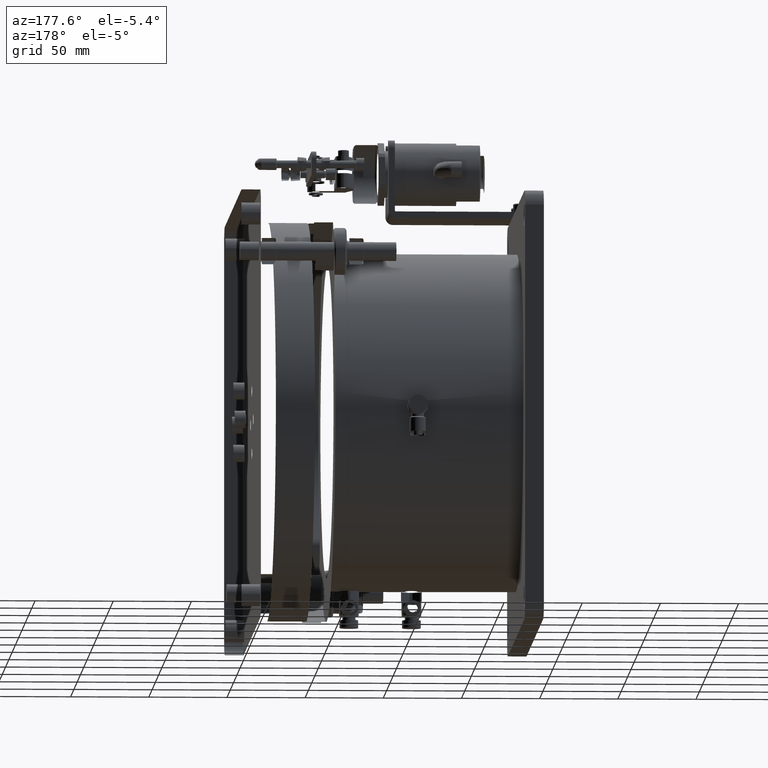
[diagram: clean part render]
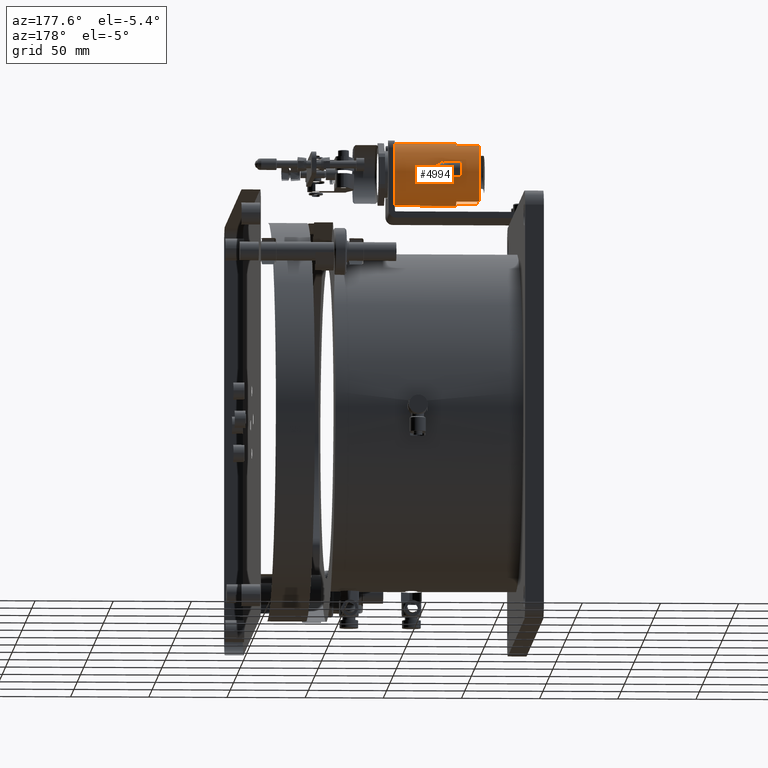
[diagram: same view with one face highlighted and labeled with its STEP entity id]
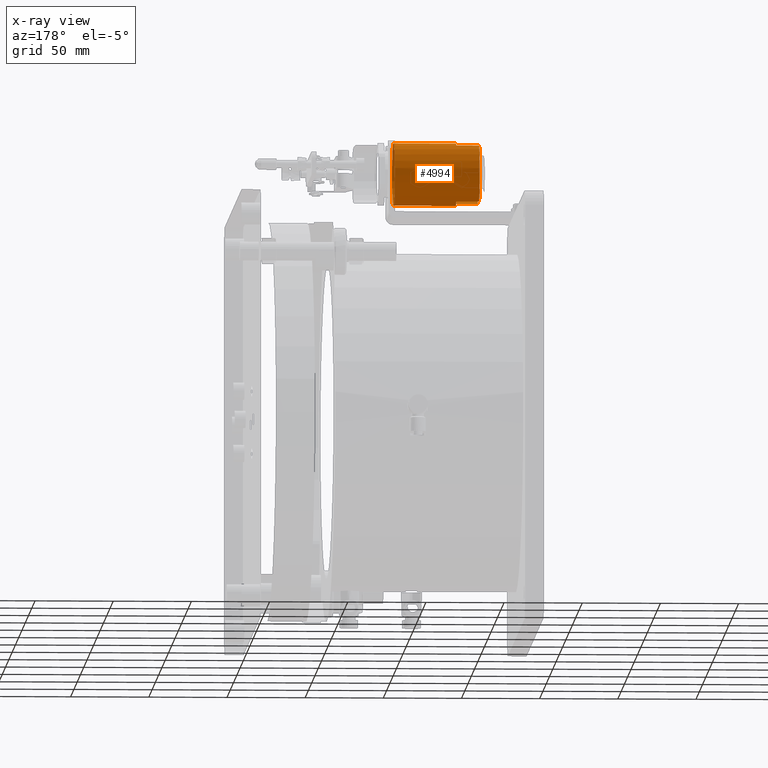
[diagram: x-ray of the same camera — body ghosted, the highlighted face saturated]
A machine part, auxiliary view. The second image highlights one B-rep face of the part: STEP entity #4994.
The next image is the same camera in x-ray: the body ghosted, the highlighted face saturated — about 2% of this face is hidden behind the body in this view.
In plain terms, the highlighted cylindrical surface (bore or boss wall) has radius 20 mm, axis along (1, 0, -0).
Its self-contained STEP definition (entity closure, byte-faithful):
#35 = CARTESIAN_POINT ( 'NONE',  ( 622.2478127839387980, -76.37611936378308997, 590.0969418321795956 ) ) ;
#187 = ORIENTED_EDGE ( 'NONE', *, *, #7001, .T. ) ;
#205 = CARTESIAN_POINT ( 'NONE',  ( 628.1511095749585820, -76.09423769593017539, 594.6112970941693447 ) ) ;
#273 = CARTESIAN_POINT ( 'NONE',  ( 636.7813149775768125, -115.6689274850426443, 589.5682206694500564 ) ) ;
#693 = VERTEX_POINT ( 'NONE', #20071 ) ;
#817 = CARTESIAN_POINT ( 'NONE',  ( 599.7532529064189930, -96.07306532472159688, 593.5684939441118786 ) ) ;
#1124 = CARTESIAN_POINT ( 'NONE',  ( 614.2532529064191067, -96.07306532472159688, 593.5684939441118786 ) ) ;
#1230 = EDGE_CURVE ( 'NONE', #13747, #24744, #10198, .T. ) ;
#1374 = CARTESIAN_POINT ( 'NONE',  ( 607.4765307754321384, -115.7478424309291256, 597.1620801990541167 ) ) ;
#1491 = CARTESIAN_POINT ( 'NONE',  ( 626.2767619447254219, -76.37895571019646468, 590.0778431257248258 ) ) ;
#1512 = CARTESIAN_POINT ( 'NONE',  ( 605.2532529064189930, -116.0730653247215969, 593.5684939441117649 ) ) ;
#1525 = CARTESIAN_POINT ( 'NONE',  ( 628.2532529064189930, -76.07306532472159688, 593.5684939441117649 ) ) ;
#1610 = CARTESIAN_POINT ( 'NONE',  ( 628.2532529064189930, -76.07306532472161109, 593.0380856154096136 ) ) ;
#1714 = CARTESIAN_POINT ( 'NONE',  ( 637.2953021423251130, -115.6905234140247103, 589.6699432105601772 ) ) ;
#1891 = VERTEX_POINT ( 'NONE', #11869 ) ;
#2001 = CARTESIAN_POINT ( 'NONE',  ( 620.2532529064188793, -76.07306532472159688, 593.3023526689413529 ) ) ;
#2011 = ORIENTED_EDGE ( 'NONE', *, *, #10291, .T. ) ;
#2063 = CARTESIAN_POINT ( 'NONE',  ( 606.7965073346900908, -115.8189209795332317, 590.3678483654047113 ) ) ;
#2131 = ORIENTED_EDGE ( 'NONE', *, *, #20604, .T. ) ;
#2158 = CARTESIAN_POINT ( 'NONE',  ( 627.7451594833781883, -76.16945821308466691, 595.5902297765893536 ) ) ;
#2180 = VERTEX_POINT ( 'NONE', #2793 ) ;
#2193 = CARTESIAN_POINT ( 'NONE',  ( 605.7613613360284717, -115.9766697412974850, 591.5465264960148488 ) ) ;
#2453 = CARTESIAN_POINT ( 'NONE',  ( 608.2136231836186653, -115.6947259603525282, 589.6963952182494495 ) ) ;
#2487 = VERTEX_POINT ( 'NONE', #8286 ) ;
#2533 = DIRECTION ( 'NONE',  ( -5.551115123125777969E-15, 0.000000000000000000, -1.000000000000000000 ) ) ;
#2793 = CARTESIAN_POINT ( 'NONE',  ( 613.2532529064189930, -116.0730653247215969, 593.5684939441117649 ) ) ;
#3098 = CIRCLE ( 'NONE', #22384, 20.00000000000001776 ) ;
#3121 = FACE_OUTER_BOUND ( 'NONE', #14416, .T. ) ;
#3196 = ORIENTED_EDGE ( 'NONE', *, *, #8689, .T. ) ;
#3262 = CARTESIAN_POINT ( 'NONE',  ( 639.4554377231090712, -115.9254357003088955, 596.0233462646407361 ) ) ;
#3388 = CARTESIAN_POINT ( 'NONE',  ( 613.2532529064188793, -116.0730653247215685, 593.0374951000483179 ) ) ;
#3643 = B_SPLINE_CURVE_WITH_KNOTS ( 'NONE', 3,
 ( #5158, #2001, #3711, #17649, #7529, #11998, #3838, #19491, #7925, #35, #21831, #9634, #25634, #18038, #25771, #19622, #3974, #1491, #9768, #15553, #7797, #15947, #1610, #15823 ),
 .UNSPECIFIED., .F., .F.,
 ( 4, 2, 2, 2, 2, 2, 2, 2, 2, 2, 2, 4 ),
 ( 0.000000000000000000, 0.06250000000000095757, 0.1250000000000019151, 0.2499999999999795164, 0.3124999999999772959, 0.3749999999999750755, 0.4999999999999946709, 0.5625000000000044409, 0.6250000000000142109, 0.7500000000000094369, 0.8750000000000047740, 1.000000000000000000 ),
 .UNSPECIFIED. ) ;
#3691 = CARTESIAN_POINT ( 'NONE',  ( 633.0490044612904512, -115.9257810236708366, 591.1164280724524360 ) ) ;
#3711 = CARTESIAN_POINT ( 'NONE',  ( 620.2788397734296950, -76.07837649127429813, 593.0410843236217033 ) ) ;
#3838 = CARTESIAN_POINT ( 'NONE',  ( 621.0512893225602511, -76.22074562938166764, 591.1131295153264773 ) ) ;
#3876 = CARTESIAN_POINT ( 'NONE',  ( 622.2321875135744449, -76.37920419269708816, 597.0605221697562683 ) ) ;
#3949 = CARTESIAN_POINT ( 'NONE',  ( 635.2136231841135441, -115.6947259603449822, 589.6963952182110233 ) ) ;
#3974 = CARTESIAN_POINT ( 'NONE',  ( 625.5449282926399519, -76.43612804595602483, 589.7735837381867441 ) ) ;
#4011 = AXIS2_PLACEMENT_3D ( 'NONE', #17622, #15401, #17500 ) ;
#4200 = CARTESIAN_POINT ( 'NONE',  ( 633.7965073361363011, -115.8189209793265633, 590.3678483639564547 ) ) ;
#4425 = CARTESIAN_POINT ( 'NONE',  ( 611.3692977052805873, -115.7824553588552732, 590.1706577413839341 ) ) ;
#4568 = CARTESIAN_POINT ( 'NONE',  ( 633.6138217027921655, -115.8450664538906096, 596.5857597956626250 ) ) ;
#4698 = CARTESIAN_POINT ( 'NONE',  ( 633.8157128566649590, -115.8186814957664268, 596.7515791801680507 ) ) ;
#4764 = CARTESIAN_POINT ( 'NONE',  ( 614.2532529064191067, -104.7908632118029431, 611.5684939441119923 ) ) ;
#4994 = ADVANCED_FACE ( 'NONE', ( #20596, #19767, #3121, #10999, #9034 ), #13746, .T. ) ;
#5073 = DIRECTION ( 'NONE',  ( 1.000000000000000000, 4.870765033165564874E-18, -3.582884835280661200E-15 ) ) ;
#5084 = CARTESIAN_POINT ( 'NONE',  ( 635.2130881293932134, -115.6904615507582577, 597.4672925684677693 ) ) ;
#5158 = CARTESIAN_POINT ( 'NONE',  ( 620.2532529064189930, -76.07306532472159688, 593.5684939441117649 ) ) ;
#5195 = DIRECTION ( 'NONE',  ( -5.551115123125777969E-15, 0.000000000000000000, -1.000000000000000000 ) ) ;
#5220 = CARTESIAN_POINT ( 'NONE',  ( 640.1512968414664329, -116.0519176866114464, 594.6115565676003598 ) ) ;
#5264 = CARTESIAN_POINT ( 'NONE',  ( 614.2532529064189930, -104.7908632118029146, 575.5684939441118786 ) ) ;
#5421 = B_SPLINE_CURVE_WITH_KNOTS ( 'NONE', 3,
 ( #12290, #24114, #205, #2158, #9945, #5856, #8226, #9808, #16364, #16252, #12035, #25813, #24232, #22385, #6252, #3876, #11903, #20310, #13883, #14400, #7836, #7962 ),
 .UNSPECIFIED., .F., .F.,
 ( 4, 2, 2, 2, 2, 2, 2, 2, 2, 2, 4 ),
 ( 0.000000000000000000, 0.1249999999999870937, 0.2499999999999741873, 0.3124999999999770739, 0.3749999999999799050, 0.4999999999999754641, 0.5624999999999732436, 0.6249999999999710232, 0.7499999999999805711, 0.8749999999999902300, 1.000000000000000000 ),
 .UNSPECIFIED. ) ;
#5575 = CARTESIAN_POINT ( 'NONE',  ( 613.1512968414660918, -116.0519176865672932, 594.6115565681743647 ) ) ;
#5856 = CARTESIAN_POINT ( 'NONE',  ( 626.8940436213880503, -76.30088348878716431, 596.5845932944150718 ) ) ;
#6012 = VERTEX_POINT ( 'NONE', #16048 ) ;
#6136 = DIRECTION ( 'NONE',  ( -1.000000000000000000, -4.870765033165564874E-18, 3.582884835280661200E-15 ) ) ;
#6164 = CARTESIAN_POINT ( 'NONE',  ( 611.2579466360147080, -115.7708005113661329, 590.1039429638368574 ) ) ;
#6197 = CARTESIAN_POINT ( 'NONE',  ( 638.8943437768473359, -115.8452909838356959, 590.5527083026727269 ) ) ;
#6252 = CARTESIAN_POINT ( 'NONE',  ( 622.9638663622685044, -76.43627786682850456, 597.3641737498348903 ) ) ;
#6283 = CARTESIAN_POINT ( 'NONE',  ( 609.7813149782364235, -115.6689274850321709, 589.5682206693990111 ) ) ;
#6301 = CIRCLE ( 'NONE', #20956, 20.00000000000001776 ) ;
#6775 = EDGE_LOOP ( 'NONE', ( #2011, #16436 ) ) ;
#7001 = EDGE_CURVE ( 'NONE', #2180, #1891, #19187, .T. ) ;
#7065 = CARTESIAN_POINT ( 'NONE',  ( 599.7532529064189930, -87.35526743764025071, 575.5684939441118786 ) ) ;
#7188 = CARTESIAN_POINT ( 'NONE',  ( 676.7532529064189930, -96.07306532472159688, 593.5684939441116512 ) ) ;
#7197 = CARTESIAN_POINT ( 'NONE',  ( 634.4765307750792545, -115.7478424309242371, 597.1620801990798100 ) ) ;
#7492 = CARTESIAN_POINT ( 'NONE',  ( 599.7532529064191067, -104.7908632118028862, 611.5684939441119923 ) ) ;
#7529 = CARTESIAN_POINT ( 'NONE',  ( 620.4586405348509288, -76.11337770531372371, 592.2758637796107450 ) ) ;
#7542 = LINE ( 'NONE', #15568, #22015 ) ;
#7550 = CARTESIAN_POINT ( 'NONE',  ( 609.7793389997680151, -115.6742270509653281, 597.5430566639455492 ) ) ;
#7685 = CARTESIAN_POINT ( 'NONE',  ( 613.2532529064189930, -116.0730653247215969, 593.5684939441117649 ) ) ;
#7797 = CARTESIAN_POINT ( 'NONE',  ( 627.7450433598670543, -76.16947903009820209, 591.5463376986350568 ) ) ;
#7836 = CARTESIAN_POINT ( 'NONE',  ( 620.2532529064187656, -76.07306532472155425, 594.0997822895814124 ) ) ;
#7925 = CARTESIAN_POINT ( 'NONE',  ( 621.8160999203902293, -76.32749490741298359, 590.3851304478862403 ) ) ;
#7950 = ORIENTED_EDGE ( 'NONE', *, *, #9831, .T. ) ;
#7962 = CARTESIAN_POINT ( 'NONE',  ( 620.2532529064189930, -76.07306532472159688, 593.5684939441117649 ) ) ;
#8226 = CARTESIAN_POINT ( 'NONE',  ( 626.6920266002209701, -76.32729915763067652, 596.7506582241001070 ) ) ;
#8286 = CARTESIAN_POINT ( 'NONE',  ( 654.2532529064188793, -96.07306532472159688, 573.5684939441117649 ) ) ;
#8288 = CARTESIAN_POINT ( 'NONE',  ( 639.7446545131164157, -115.9765837488741624, 591.5459911306644472 ) ) ;
#8369 = LINE ( 'NONE', #20338, #10546 ) ;
#8528 = CARTESIAN_POINT ( 'NONE',  ( 633.0504792787572796, -115.9255120328728879, 596.0228873891801413 ) ) ;
#8611 = CARTESIAN_POINT ( 'NONE',  ( 620.2532529064189930, -76.07306532472159688, 593.5684939441117649 ) ) ;
#8631 = CIRCLE ( 'NONE', #4011, 20.00000000000001776 ) ;
#8647 = DIRECTION ( 'NONE',  ( -5.551115123125777969E-15, 0.000000000000000000, -1.000000000000000000 ) ) ;
#8689 = EDGE_CURVE ( 'NONE', #17799, #15413, #7542, .T. ) ;
#8797 = CARTESIAN_POINT ( 'NONE',  ( 632.2532529064188793, -116.0730653247215969, 593.0381406367860109 ) ) ;
#8799 = AXIS2_PLACEMENT_3D ( 'NONE', #12562, #20565, #19511 ) ;
#9034 = FACE_OUTER_BOUND ( 'NONE', #20298, .T. ) ;
#9258 = CARTESIAN_POINT ( 'NONE',  ( 606.8157128561825857, -115.8186814958404369, 596.7515791797094380 ) ) ;
#9395 = CARTESIAN_POINT ( 'NONE',  ( 606.6138217024704318, -115.8450664539345070, 596.5857597953558979 ) ) ;
#9532 = CARTESIAN_POINT ( 'NONE',  ( 605.3554518845588746, -116.0518795030901487, 594.6117198279148397 ) ) ;
#9634 = CARTESIAN_POINT ( 'NONE',  ( 623.2132478589671791, -76.45568797784189030, 589.6695887384755679 ) ) ;
#9640 = CARTESIAN_POINT ( 'NONE',  ( 599.7532529064191067, -87.35526743764025071, 611.5684939441119923 ) ) ;
#9768 = CARTESIAN_POINT ( 'NONE',  ( 626.7093327461085437, -76.32729601421020504, 590.3673080437533827 ) ) ;
#9808 = CARTESIAN_POINT ( 'NONE',  ( 626.2597025832856161, -76.37602089971028363, 597.0395012834005684 ) ) ;
#9831 = EDGE_CURVE ( 'NONE', #2487, #2487, #8631, .T. ) ;
#9855 = EDGE_LOOP ( 'NONE', ( #17540, #25784 ) ) ;
#9868 = AXIS2_PLACEMENT_3D ( 'NONE', #7188, #10870, #17673 ) ;
#9945 = CARTESIAN_POINT ( 'NONE',  ( 627.4576597229885238, -76.22035839104729860, 596.0208696865826141 ) ) ;
#9978 = CARTESIAN_POINT ( 'NONE',  ( 610.9110239532519699, -115.7385972416346931, 589.9257526128338895 ) ) ;
#10198 = LINE ( 'NONE', #24118, #11420 ) ;
#10263 = CARTESIAN_POINT ( 'NONE',  ( 638.3692977019693444, -115.7824553585204228, 590.1706577394412534 ) ) ;
#10291 = EDGE_CURVE ( 'NONE', #12009, #23234, #3643, .T. ) ;
#10356 = CARTESIAN_POINT ( 'NONE',  ( 608.7248396280514271, -115.6742852710442406, 589.5942152348894751 ) ) ;
#10477 = CARTESIAN_POINT ( 'NONE',  ( 611.8943437790549069, -115.8452909840215312, 590.5527083039736453 ) ) ;
#10500 = CARTESIAN_POINT ( 'NONE',  ( 632.7619302458770107, -115.9765673878716967, 595.5913488178069883 ) ) ;
#10511 = VERTEX_POINT ( 'NONE', #5264 ) ;
#10546 = VECTOR ( 'NONE', #18103, 1000.000000000000000 ) ;
#10751 = ORIENTED_EDGE ( 'NONE', *, *, #1230, .T. ) ;
#10791 = B_SPLINE_CURVE_WITH_KNOTS ( 'NONE', 3,
 ( #17897, #25884, #24178, #8288, #13960, #6197, #20249, #10263, #15803, #18274, #12105, #1714, #273, #21948, #14218, #3949, #22199, #21692, #4200, #3691, #11704, #25747, #8797, #16701 ),
 .UNSPECIFIED., .F., .F.,
 ( 4, 2, 2, 2, 2, 2, 2, 2, 2, 2, 2, 4 ),
 ( 0.000000000000000000, 0.1249999999999499289, 0.2499999999998998579, 0.3124999999998839817, 0.3437499999998761546, 0.3749999999998683831, 0.4999999999998947509, 0.5624999999999078515, 0.6249999999999210631, 0.7499999999999473754, 0.8749999999999736877, 1.000000000000000000 ),
 .UNSPECIFIED. ) ;
#10870 = DIRECTION ( 'NONE',  ( 1.000000000000000000, 4.870765033165564874E-18, -3.582884835280661200E-15 ) ) ;
#10879 = CARTESIAN_POINT ( 'NONE',  ( 636.5191850700250598, -115.6689886221571726, 597.5684677092423271 ) ) ;
#10999 = FACE_BOUND ( 'NONE', #6775, .T. ) ;
#11009 = CARTESIAN_POINT ( 'NONE',  ( 636.7793389996747919, -115.6742270509574979, 597.5430566639838617 ) ) ;
#11360 = CARTESIAN_POINT ( 'NONE',  ( 613.2532529064188793, -116.0730653247216253, 594.0997524707102002 ) ) ;
#11410 = CARTESIAN_POINT ( 'NONE',  ( 613.1506149553355272, -116.0517964404074007, 592.5240484955138527 ) ) ;
#11420 = VECTOR ( 'NONE', #6136, 1000.000000000000000 ) ;
#11493 = CARTESIAN_POINT ( 'NONE',  ( 605.7619302464756856, -115.9765673878276004, 595.5913488183803111 ) ) ;
#11704 = CARTESIAN_POINT ( 'NONE',  ( 632.7613613360282443, -115.9766697411411798, 591.5465264939792860 ) ) ;
#11869 = CARTESIAN_POINT ( 'NONE',  ( 605.2532529064189930, -116.0730653247215969, 593.5684939441117649 ) ) ;
#11903 = CARTESIAN_POINT ( 'NONE',  ( 621.7999566161815892, -76.32765111071017827, 596.7718546237701958 ) ) ;
#11998 = CARTESIAN_POINT ( 'NONE',  ( 620.7636048619337998, -76.16985768512677168, 591.5430517501043823 ) ) ;
#12009 = VERTEX_POINT ( 'NONE', #8611 ) ;
#12035 = CARTESIAN_POINT ( 'NONE',  ( 624.7815947423546277, -76.47717485323718734, 597.5686285229153327 ) ) ;
#12071 = CARTESIAN_POINT ( 'NONE',  ( 607.2291467647904710, -115.7672372942158887, 590.0781900343405368 ) ) ;
#12105 = CARTESIAN_POINT ( 'NONE',  ( 637.9110239536754534, -115.7385972416322488, 589.9257526128207019 ) ) ;
#12290 = CARTESIAN_POINT ( 'NONE',  ( 628.2532529064189930, -76.07306532472159688, 593.5684939441117649 ) ) ;
#12326 = CARTESIAN_POINT ( 'NONE',  ( 612.4567526194625771, -115.9256407819798369, 591.1151839530920142 ) ) ;
#12562 = CARTESIAN_POINT ( 'NONE',  ( 599.7532529064189930, -96.07306532472159688, 593.5684939441118786 ) ) ;
#12599 = CARTESIAN_POINT ( 'NONE',  ( 634.2477158561326860, -115.7700191441323483, 597.0400065582653042 ) ) ;
#12666 = ORIENTED_EDGE ( 'NONE', *, *, #16274, .T. ) ;
#12718 = CARTESIAN_POINT ( 'NONE',  ( 640.2532529064189930, -116.0730653247215969, 593.5684939441116512 ) ) ;
#13106 = ORIENTED_EDGE ( 'NONE', *, *, #23162, .T. ) ;
#13382 = ORIENTED_EDGE ( 'NONE', *, *, #25368, .T. ) ;
#13470 = DIRECTION ( 'NONE',  ( 1.000000000000000000, 4.870765033165564874E-18, -3.582884835280661200E-15 ) ) ;
#13507 = CIRCLE ( 'NONE', #16441, 20.00000000000001776 ) ;
#13648 = ORIENTED_EDGE ( 'NONE', *, *, #20546, .T. ) ;
#13746 = CYLINDRICAL_SURFACE ( 'NONE', #9868, 20.00000000000001776 ) ;
#13747 = VERTEX_POINT ( 'NONE', #4764 ) ;
#13883 = CARTESIAN_POINT ( 'NONE',  ( 620.7630884343228672, -76.16977068742664869, 595.5936870388063653 ) ) ;
#13960 = CARTESIAN_POINT ( 'NONE',  ( 639.4567526238774917, -115.9256407823515076, 591.1151839556937375 ) ) ;
#14218 = CARTESIAN_POINT ( 'NONE',  ( 635.7248396285464196, -115.6742852710364531, 589.5942152348511627 ) ) ;
#14400 = CARTESIAN_POINT ( 'NONE',  ( 620.3552200119997906, -76.09421533153572170, 594.6116130358500413 ) ) ;
#14416 = EDGE_LOOP ( 'NONE', ( #7950 ) ) ;
#14431 = CARTESIAN_POINT ( 'NONE',  ( 611.6927811555606240, -115.8189314904246743, 590.3869605278398467 ) ) ;
#14471 = VERTEX_POINT ( 'NONE', #22565 ) ;
#14633 = VERTEX_POINT ( 'NONE', #7065 ) ;
#14707 = B_SPLINE_CURVE_WITH_KNOTS ( 'NONE', 3,
 ( #16302, #18510, #22444, #10500, #8528, #4568, #4698, #12599, #7197, #5084, #15089, #10879, #11009, #20866, #23351, #25444, #21373, #3262, #18890, #5220, #19282, #15224 ),
 .UNSPECIFIED., .F., .F.,
 ( 4, 2, 2, 2, 2, 2, 2, 2, 2, 2, 4 ),
 ( 0.000000000000000000, 0.1250000000000066613, 0.2500000000000133227, 0.3125000000000076605, 0.3750000000000019984, 0.4999999999999805156, 0.5624999999999829026, 0.6249999999999852340, 0.7499999999999902300, 0.8749999999999951150, 1.000000000000000000 ),
 .UNSPECIFIED. ) ;
#14905 = DIRECTION ( 'NONE',  ( -1.000000000000000000, -4.870765033165564874E-18, 3.582884835280661200E-15 ) ) ;
#15089 = CARTESIAN_POINT ( 'NONE',  ( 635.7242228143614966, -115.6689726249677932, 597.5685460791473815 ) ) ;
#15224 = CARTESIAN_POINT ( 'NONE',  ( 640.2532529064189930, -116.0730653247215969, 593.5684939441116512 ) ) ;
#15401 = DIRECTION ( 'NONE',  ( -1.000000000000000000, -4.870765033165564874E-18, 3.582884835280661200E-15 ) ) ;
#15413 = VERTEX_POINT ( 'NONE', #23585 ) ;
#15553 = CARTESIAN_POINT ( 'NONE',  ( 627.4572138361261295, -76.22039954606275103, 591.1160139108686735 ) ) ;
#15568 = CARTESIAN_POINT ( 'NONE',  ( 676.7532529064191067, -87.35526743764025071, 611.5684939441117649 ) ) ;
#15574 = CARTESIAN_POINT ( 'NONE',  ( 610.2899798812576364, -115.6945768051629670, 597.4413452264568605 ) ) ;
#15591 = DIRECTION ( 'NONE',  ( 1.000000000000000000, 4.870765033165564874E-18, -3.582884835280661200E-15 ) ) ;
#15628 = CARTESIAN_POINT ( 'NONE',  ( 613.2532529064189930, -116.0730653247215969, 593.5684939441117649 ) ) ;
#15803 = CARTESIAN_POINT ( 'NONE',  ( 638.2579466329789284, -115.7708005110521583, 590.1039429620574310 ) ) ;
#15823 = CARTESIAN_POINT ( 'NONE',  ( 628.2532529064189930, -76.07306532472159688, 593.5684939441117649 ) ) ;
#15947 = CARTESIAN_POINT ( 'NONE',  ( 628.1516109971087189, -76.09414548564751613, 592.5270404729986922 ) ) ;
#16048 = CARTESIAN_POINT ( 'NONE',  ( 614.2532529064189930, -87.35526743764025071, 575.5684939441118786 ) ) ;
#16252 = CARTESIAN_POINT ( 'NONE',  ( 625.2935623861961858, -76.45566993283479462, 597.4673085343845287 ) ) ;
#16274 = EDGE_CURVE ( 'NONE', #10511, #6012, #13507, .T. ) ;
#16302 = CARTESIAN_POINT ( 'NONE',  ( 632.2532529064189930, -116.0730653247215969, 593.5684939441116512 ) ) ;
#16364 = CARTESIAN_POINT ( 'NONE',  ( 626.0306342135736486, -76.39823080541874845, 597.1617690422340274 ) ) ;
#16391 = EDGE_CURVE ( 'NONE', #23234, #12009, #5421, .T. ) ;
#16436 = ORIENTED_EDGE ( 'NONE', *, *, #16391, .T. ) ;
#16441 = AXIS2_PLACEMENT_3D ( 'NONE', #1124, #15591, #5195 ) ;
#16616 = DIRECTION ( 'NONE',  ( 1.000000000000000000, 4.870765033165564874E-18, -3.582884835280661200E-15 ) ) ;
#16701 = CARTESIAN_POINT ( 'NONE',  ( 632.2532529064189930, -116.0730653247215969, 593.5684939441116512 ) ) ;
#16804 = CIRCLE ( 'NONE', #8799, 20.00000000000001776 ) ;
#17500 = DIRECTION ( 'NONE',  ( -5.551115123125777969E-15, 0.000000000000000000, -1.000000000000000000 ) ) ;
#17540 = ORIENTED_EDGE ( 'NONE', *, *, #18330, .T. ) ;
#17549 = CARTESIAN_POINT ( 'NONE',  ( 607.2477158556503127, -115.7700191442130375, 597.0400065578076010 ) ) ;
#17622 = CARTESIAN_POINT ( 'NONE',  ( 654.2532529064189930, -96.07306532472159688, 593.5684939441117649 ) ) ;
#17649 = CARTESIAN_POINT ( 'NONE',  ( 620.3811872414712525, -76.09846862492214825, 592.5286722601061911 ) ) ;
#17673 = DIRECTION ( 'NONE',  ( -5.551115123125777969E-15, 0.000000000000000000, -1.000000000000000000 ) ) ;
#17799 = VERTEX_POINT ( 'NONE', #9640 ) ;
#17897 = CARTESIAN_POINT ( 'NONE',  ( 640.2532529064189930, -116.0730653247215969, 593.5684939441116512 ) ) ;
#18038 = CARTESIAN_POINT ( 'NONE',  ( 624.5205776598076000, -76.47712743814875580, 589.5685916508775790 ) ) ;
#18103 = DIRECTION ( 'NONE',  ( 1.000000000000000000, 4.870765033165564874E-18, -3.582884835280661200E-15 ) ) ;
#18274 = CARTESIAN_POINT ( 'NONE',  ( 638.0281979905379330, -115.7488236931853436, 589.9812362723118895 ) ) ;
#18330 = EDGE_CURVE ( 'NONE', #19372, #14471, #10791, .T. ) ;
#18430 = ORIENTED_EDGE ( 'NONE', *, *, #20778, .T. ) ;
#18510 = CARTESIAN_POINT ( 'NONE',  ( 632.2532529064188793, -116.0730653247215969, 594.0993308705161553 ) ) ;
#18890 = CARTESIAN_POINT ( 'NONE',  ( 639.7434725816555101, -115.9763698650736217, 595.5935839936436196 ) ) ;
#19006 = CARTESIAN_POINT ( 'NONE',  ( 614.2532529064189930, -96.07306532472159688, 593.5684939441118786 ) ) ;
#19111 = CARTESIAN_POINT ( 'NONE',  ( 612.4554377227008217, -115.9254357002506026, 596.0233462650487581 ) ) ;
#19187 = B_SPLINE_CURVE_WITH_KNOTS ( 'NONE', 3,
 ( #15628, #3388, #11410, #21653, #12326, #10477, #14431, #4425, #6164, #20085, #9978, #22422, #6283, #21909, #10356, #2453, #24264, #12071, #2063, #20466, #2193, #24008, #23877, #24144 ),
 .UNSPECIFIED., .F., .F.,
 ( 4, 2, 2, 2, 2, 2, 2, 2, 2, 2, 2, 4 ),
 ( 0.000000000000000000, 0.1250000000000669464, 0.2500000000001338929, 0.3125000000001671996, 0.3437500000001766365, 0.3750000000001861289, 0.5000000000001699751, 0.5625000000001487699, 0.6250000000001276756, 0.7500000000000851541, 0.8750000000000426326, 1.000000000000000000 ),
 .UNSPECIFIED. ) ;
#19243 = CARTESIAN_POINT ( 'NONE',  ( 610.5421328934634175, -115.7098183504077014, 597.3643520860249509 ) ) ;
#19282 = CARTESIAN_POINT ( 'NONE',  ( 640.2532529064191067, -116.0730653247216537, 594.0997524701343764 ) ) ;
#19372 = VERTEX_POINT ( 'NONE', #12718 ) ;
#19490 = B_SPLINE_CURVE_WITH_KNOTS ( 'NONE', 3,
 ( #1512, #21333, #9532, #11493, #19641, #9395, #9258, #17549, #1374, #25530, #21600, #25405, #7550, #15574, #19243, #25133, #23569, #19111, #25655, #5575, #11360, #7685 ),
 .UNSPECIFIED., .F., .F.,
 ( 4, 2, 2, 2, 2, 2, 2, 2, 2, 2, 4 ),
 ( 0.000000000000000000, 0.1249999999999530931, 0.2499999999999061862, 0.3124999999999011346, 0.3749999999998961386, 0.4999999999998960831, 0.5624999999999091838, 0.6249999999999221734, 0.7499999999999481526, 0.8749999999999740208, 1.000000000000000000 ),
 .UNSPECIFIED. ) ;
#19491 = CARTESIAN_POINT ( 'NONE',  ( 621.6143313642255634, -76.30113128940465117, 590.5507998833915053 ) ) ;
#19511 = DIRECTION ( 'NONE',  ( -5.551115123125777969E-15, 0.000000000000000000, -1.000000000000000000 ) ) ;
#19545 = VECTOR ( 'NONE', #14905, 1000.000000000000000 ) ;
#19622 = CARTESIAN_POINT ( 'NONE',  ( 625.2922442287740523, -76.45143838809343606, 589.6962250572300945 ) ) ;
#19641 = CARTESIAN_POINT ( 'NONE',  ( 606.0504792794004061, -115.9255120327852211, 596.0228873897935955 ) ) ;
#19767 = FACE_BOUND ( 'NONE', #9855, .T. ) ;
#20071 = CARTESIAN_POINT ( 'NONE',  ( 599.7532529064188793, -104.7908632118029146, 575.5684939441118786 ) ) ;
#20078 = EDGE_CURVE ( 'NONE', #15413, #13747, #3098, .T. ) ;
#20085 = CARTESIAN_POINT ( 'NONE',  ( 611.0281979924698135, -115.7488236933926231, 589.9812362734433009 ) ) ;
#20249 = CARTESIAN_POINT ( 'NONE',  ( 638.6927811522489264, -115.8189314901110976, 590.3869605258936417 ) ) ;
#20298 = EDGE_LOOP ( 'NONE', ( #23829, #10751, #18430, #13106, #12666, #13382, #13648, #3196 ) ) ;
#20310 = CARTESIAN_POINT ( 'NONE',  ( 621.0511169651832688, -76.22070291270526354, 596.0234091745885507 ) ) ;
#20338 = CARTESIAN_POINT ( 'NONE',  ( 676.7532529064188793, -104.7908632118029146, 575.5684939441116512 ) ) ;
#20466 = CARTESIAN_POINT ( 'NONE',  ( 606.0490044627360930, -115.9257810234640971, 591.1164280710042931 ) ) ;
#20546 = EDGE_CURVE ( 'NONE', #14633, #17799, #16804, .T. ) ;
#20565 = DIRECTION ( 'NONE',  ( 1.000000000000000000, 4.870765033165564874E-18, -3.582884835280661200E-15 ) ) ;
#20596 = FACE_BOUND ( 'NONE', #22303, .T. ) ;
#20604 = EDGE_CURVE ( 'NONE', #1891, #2180, #19490, .T. ) ;
#20778 = EDGE_CURVE ( 'NONE', #24744, #693, #6301, .T. ) ;
#20866 = CARTESIAN_POINT ( 'NONE',  ( 637.2899798811645269, -115.6945768051553500, 597.4413452264954003 ) ) ;
#20956 = AXIS2_PLACEMENT_3D ( 'NONE', #817, #16616, #2533 ) ;
#21333 = CARTESIAN_POINT ( 'NONE',  ( 605.2532529064191067, -116.0730653247216395, 594.0993308713910892 ) ) ;
#21373 = CARTESIAN_POINT ( 'NONE',  ( 638.7066067410173673, -115.8184867743891431, 596.7718111653855431 ) ) ;
#21600 = CARTESIAN_POINT ( 'NONE',  ( 608.7242228142371232, -115.6689726249572772, 597.5685460791988817 ) ) ;
#21653 = CARTESIAN_POINT ( 'NONE',  ( 612.7446545143484400, -115.9765837491098068, 591.5459911337287622 ) ) ;
#21692 = CARTESIAN_POINT ( 'NONE',  ( 634.2291467651731409, -115.7672372941444081, 590.0781900339601407 ) ) ;
#21831 = CARTESIAN_POINT ( 'NONE',  ( 622.4760599819901472, -76.39824832249558995, 589.9751229819067930 ) ) ;
#21909 = CARTESIAN_POINT ( 'NONE',  ( 608.9853110590277083, -115.6690114181282354, 589.5686318560055952 ) ) ;
#21948 = CARTESIAN_POINT ( 'NONE',  ( 635.9853110593577412, -115.6690114181230200, 589.5686318559801293 ) ) ;
#22015 = VECTOR ( 'NONE', #13470, 1000.000000000000000 ) ;
#22199 = CARTESIAN_POINT ( 'NONE',  ( 634.9609211656120351, -115.7100460432170195, 589.7738073960496195 ) ) ;
#22303 = EDGE_LOOP ( 'NONE', ( #187, #2131 ) ) ;
#22384 = AXIS2_PLACEMENT_3D ( 'NONE', #19006, #5073, #8647 ) ;
#22385 = CARTESIAN_POINT ( 'NONE',  ( 623.2160366810589949, -76.45152745985257070, 597.4412119373585028 ) ) ;
#22422 = CARTESIAN_POINT ( 'NONE',  ( 610.2953021440209795, -115.6905234140149048, 589.6699432105082224 ) ) ;
#22444 = CARTESIAN_POINT ( 'NONE',  ( 632.3554518851577768, -116.0518795030460808, 594.6117198284882761 ) ) ;
#22565 = CARTESIAN_POINT ( 'NONE',  ( 632.2532529064189930, -116.0730653247215969, 593.5684939441116512 ) ) ;
#23162 = EDGE_CURVE ( 'NONE', #693, #10511, #8369, .T. ) ;
#23234 = VERTEX_POINT ( 'NONE', #1525 ) ;
#23351 = CARTESIAN_POINT ( 'NONE',  ( 637.5421328934635312, -115.7098183504077156, 597.3643520860246099 ) ) ;
#23569 = CARTESIAN_POINT ( 'NONE',  ( 611.7066067414255031, -115.8184867744474786, 596.7718111649775210 ) ) ;
#23585 = CARTESIAN_POINT ( 'NONE',  ( 614.2532529064191067, -87.35526743764025071, 611.5684939441119923 ) ) ;
#23829 = ORIENTED_EDGE ( 'NONE', *, *, #20078, .T. ) ;
#23877 = CARTESIAN_POINT ( 'NONE',  ( 605.2532529064189930, -116.0730653247215827, 593.0381406347444226 ) ) ;
#24008 = CARTESIAN_POINT ( 'NONE',  ( 605.3548745923410479, -116.0519895261419379, 592.5271443934783520 ) ) ;
#24114 = CARTESIAN_POINT ( 'NONE',  ( 628.2532529064191067, -76.07306532472156846, 594.0990423032405943 ) ) ;
#24118 = CARTESIAN_POINT ( 'NONE',  ( 676.7532529064191067, -104.7908632118029431, 611.5684939441117649 ) ) ;
#24144 = CARTESIAN_POINT ( 'NONE',  ( 605.2532529064189930, -116.0730653247215969, 593.5684939441117649 ) ) ;
#24178 = CARTESIAN_POINT ( 'NONE',  ( 640.1506149565678925, -116.0517964406430309, 592.5240484985782814 ) ) ;
#24232 = CARTESIAN_POINT ( 'NONE',  ( 623.7266064974573965, -76.47188803565390458, 597.5429802908290640 ) ) ;
#24264 = CARTESIAN_POINT ( 'NONE',  ( 607.9609211658032564, -115.7100460431812792, 589.7738073958596488 ) ) ;
#24744 = VERTEX_POINT ( 'NONE', #7492 ) ;
#24856 = LINE ( 'NONE', #24988, #19545 ) ;
#24895 = EDGE_CURVE ( 'NONE', #14471, #19372, #14707, .T. ) ;
#24988 = CARTESIAN_POINT ( 'NONE',  ( 676.7532529064188793, -87.35526743764025071, 575.5684939441116512 ) ) ;
#25133 = CARTESIAN_POINT ( 'NONE',  ( 611.2740951008921684, -115.7668988937248429, 597.0606785122113251 ) ) ;
#25368 = EDGE_CURVE ( 'NONE', #6012, #14633, #24856, .T. ) ;
#25405 = CARTESIAN_POINT ( 'NONE',  ( 609.5191850700871328, -115.6689886221624306, 597.5684677092167476 ) ) ;
#25444 = CARTESIAN_POINT ( 'NONE',  ( 638.2740951008922821, -115.7668988937248713, 597.0606785122110978 ) ) ;
#25530 = CARTESIAN_POINT ( 'NONE',  ( 608.2130881286868771, -115.6904615507485090, 597.4672925685192695 ) ) ;
#25634 = CARTESIAN_POINT ( 'NONE',  ( 623.7246168661824868, -76.47718696350885637, 589.5683000373211371 ) ) ;
#25655 = CARTESIAN_POINT ( 'NONE',  ( 612.7434725816553964, -115.9763698651177748, 595.5935839930699558 ) ) ;
#25747 = CARTESIAN_POINT ( 'NONE',  ( 632.3548745923408205, -116.0519895262982573, 592.5271443955140285 ) ) ;
#25771 = CARTESIAN_POINT ( 'NONE',  ( 624.7810390794173827, -76.47186214375079771, 589.5941331362801066 ) ) ;
#25784 = ORIENTED_EDGE ( 'NONE', *, *, #24895, .T. ) ;
#25813 = CARTESIAN_POINT ( 'NONE',  ( 623.9867269216707655, -76.47713355272055935, 597.5684261925155170 ) ) ;
#25884 = CARTESIAN_POINT ( 'NONE',  ( 640.2532529064189930, -116.0730653247216111, 593.0374951001446107 ) ) ;